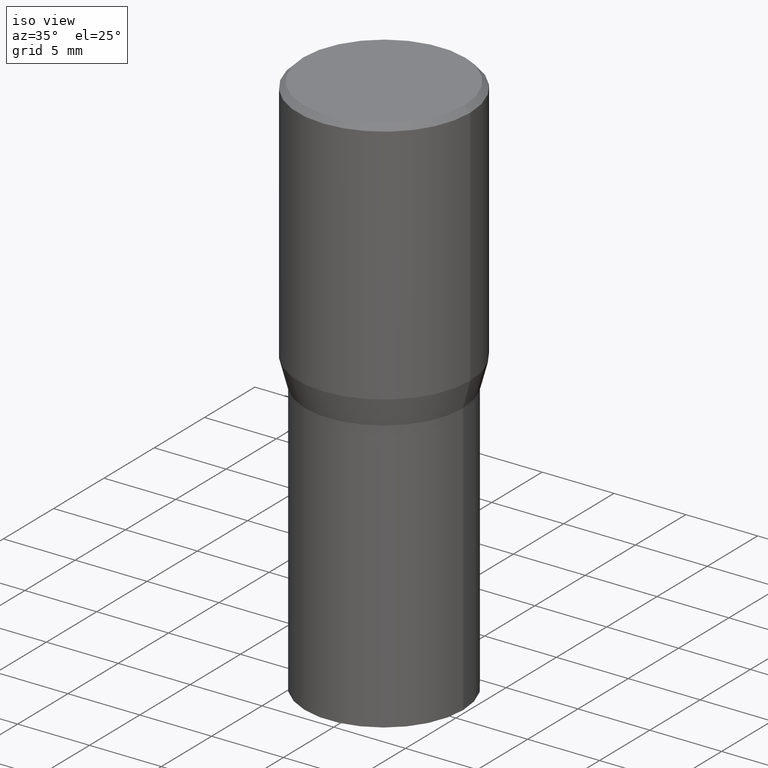
[diagram: clean part render]
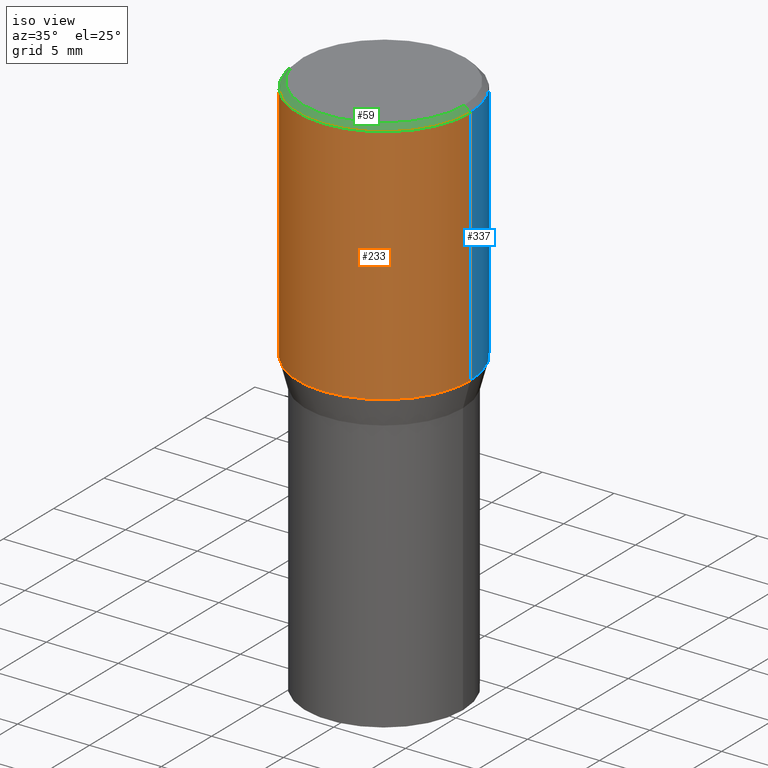
[diagram: same view with three faces highlighted in distinct colors, each labeled with its STEP entity id]
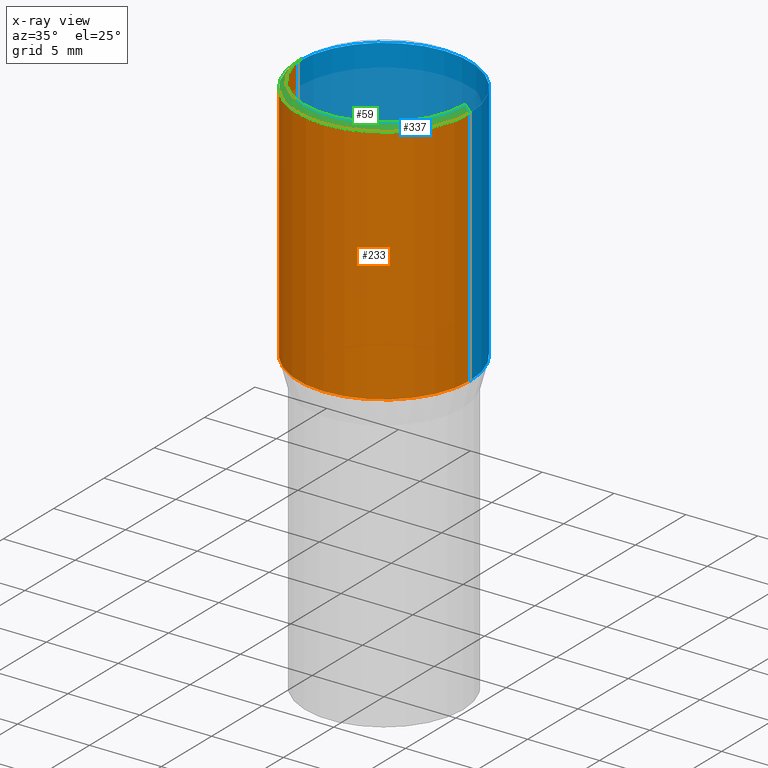
[diagram: x-ray of the same camera — body ghosted, the three highlighted faces saturated]
A machine part, iso view with three faces highlighted in distinct colors.
The next image is the same camera in x-ray (body ghosted, the three faces saturated) — at least one of them is partly hidden behind the body in this view.
Their STEP definitions:

[orange] entity #233 — the highlighted cylindrical surface (partial cylindrical patch) has radius 5.9995 mm, axis along (-0, 0, 1).
#8 = CARTESIAN_POINT ( 'NONE',  ( 0.2361999999999999933, -1.649375784469496131E-15, 1.151752954443000088E-29 ) ) ;
#10 = CARTESIAN_POINT ( 'NONE',  ( -0.2361999999999999933, -6.912449449524502887E-16, -0.6786652016312719748 ) ) ;
#11 = LINE ( 'NONE', #214, #32 ) ;
#25 = CIRCLE ( 'NONE', #200, 0.2361999999999999933 ) ;
#28 = EDGE_CURVE ( 'NONE', #34, #316, #172, .T. ) ;
#29 = LINE ( 'NONE', #8, #453 ) ;
#32 = VECTOR ( 'NONE', #143, 39.37007874015748143 ) ;
#34 = VERTEX_POINT ( 'NONE', #349 ) ;
#35 = CARTESIAN_POINT ( 'NONE',  ( 0.2361999999999999933, -1.701748004552143407E-15, -0.01499999999999999944 ) ) ;
#48 = DIRECTION ( 'NONE',  ( 1.000000000000000000, -6.982962677686266711E-15, 0.000000000000000000 ) ) ;
#67 = EDGE_CURVE ( 'NONE', #180, #34, #11, .T. ) ;
#88 = DIRECTION ( 'NONE',  ( -2.445468806185136597E-29, 3.491481338843145583E-15, 1.000000000000000000 ) ) ;
#123 = EDGE_CURVE ( 'NONE', #180, #309, #25, .T. ) ;
#124 = DIRECTION ( 'NONE',  ( -2.445468806185136597E-29, 3.491481338843145583E-15, 1.000000000000000000 ) ) ;
#133 = AXIS2_PLACEMENT_3D ( 'NONE', #300, #88, #258 ) ;
#143 = DIRECTION ( 'NONE',  ( -2.445468806185136877E-29, 3.491481338843145188E-15, 1.000000000000000000 ) ) ;
#158 = CARTESIAN_POINT ( 'NONE',  ( 1.659654580432621677E-29, -2.369546886817807077E-15, -0.6786652016312719748 ) ) ;
#164 = DIRECTION ( 'NONE',  ( -2.445468806185136597E-29, 3.491481338843145583E-15, 1.000000000000000000 ) ) ;
#172 = CIRCLE ( 'NONE', #242, 0.2361999999999999933 ) ;
#180 = VERTEX_POINT ( 'NONE', #10 ) ;
#181 = DIRECTION ( 'NONE',  ( -2.445468806185136877E-29, 3.491481338843145188E-15, 1.000000000000000000 ) ) ;
#183 = DIRECTION ( 'NONE',  ( 1.000000000000000000, -6.982962677686266711E-15, 0.000000000000000000 ) ) ;
#191 = CARTESIAN_POINT ( 'NONE',  ( 0.2361999999999999933, -4.018922671287303208E-15, -0.6786652016312719748 ) ) ;
#200 = AXIS2_PLACEMENT_3D ( 'NONE', #158, #164, #48 ) ;
#214 = CARTESIAN_POINT ( 'NONE',  ( -0.2361999999999999933, 1.678301941865356591E-15, -1.161852468318208757E-29 ) ) ;
#233 = ADVANCED_FACE ( 'NONE', ( #292 ), #433, .T. ) ;
#242 = AXIS2_PLACEMENT_3D ( 'NONE', #290, #124, #183 ) ;
#258 = DIRECTION ( 'NONE',  ( 1.000000000000000000, -6.982962677686266711E-15, 4.876176775795936353E-29 ) ) ;
#275 = ORIENTED_EDGE ( 'NONE', *, *, #67, .F. ) ;
#288 = ORIENTED_EDGE ( 'NONE', *, *, #28, .F. ) ;
#290 = CARTESIAN_POINT ( 'NONE',  ( 3.668203209277705088E-31, -5.237222008264718399E-17, -0.01499999999999999944 ) ) ;
#292 = FACE_OUTER_BOUND ( 'NONE', #454, .T. ) ;
#300 = CARTESIAN_POINT ( 'NONE',  ( 0.000000000000000000, 0.000000000000000000, 0.000000000000000000 ) ) ;
#309 = VERTEX_POINT ( 'NONE', #191 ) ;
#310 = EDGE_CURVE ( 'NONE', #309, #316, #29, .T. ) ;
#316 = VERTEX_POINT ( 'NONE', #35 ) ;
#325 = ORIENTED_EDGE ( 'NONE', *, *, #310, .T. ) ;
#349 = CARTESIAN_POINT ( 'NONE',  ( -0.2361999999999999933, 4.673423884151294145E-16, -0.01499999999999999944 ) ) ;
#386 = ORIENTED_EDGE ( 'NONE', *, *, #123, .T. ) ;
#433 = CYLINDRICAL_SURFACE ( 'NONE', #133, 0.2361999999999999933 ) ;
#453 = VECTOR ( 'NONE', #181, 39.37007874015748143 ) ;
#454 = EDGE_LOOP ( 'NONE', ( #275, #386, #325, #288 ) ) ;

[blue] entity #337 — the highlighted cylindrical surface (partial cylindrical patch) has radius 5.9995 mm, axis along (-0, 0, 1).
#3 = FACE_OUTER_BOUND ( 'NONE', #418, .T. ) ;
#8 = CARTESIAN_POINT ( 'NONE',  ( 0.2361999999999999933, -1.649375784469496131E-15, 1.151752954443000088E-29 ) ) ;
#10 = CARTESIAN_POINT ( 'NONE',  ( -0.2361999999999999933, -6.912449449524502887E-16, -0.6786652016312719748 ) ) ;
#11 = LINE ( 'NONE', #214, #32 ) ;
#29 = LINE ( 'NONE', #8, #453 ) ;
#32 = VECTOR ( 'NONE', #143, 39.37007874015748143 ) ;
#34 = VERTEX_POINT ( 'NONE', #349 ) ;
#35 = CARTESIAN_POINT ( 'NONE',  ( 0.2361999999999999933, -1.701748004552143407E-15, -0.01499999999999999944 ) ) ;
#67 = EDGE_CURVE ( 'NONE', #180, #34, #11, .T. ) ;
#78 = DIRECTION ( 'NONE',  ( -2.445468806185136597E-29, 3.491481338843145583E-15, 1.000000000000000000 ) ) ;
#82 = CIRCLE ( 'NONE', #322, 0.2361999999999999933 ) ;
#112 = ORIENTED_EDGE ( 'NONE', *, *, #310, .F. ) ;
#143 = DIRECTION ( 'NONE',  ( -2.445468806185136877E-29, 3.491481338843145188E-15, 1.000000000000000000 ) ) ;
#161 = CARTESIAN_POINT ( 'NONE',  ( 3.668203209277705088E-31, -5.237222008264718399E-17, -0.01499999999999999944 ) ) ;
#180 = VERTEX_POINT ( 'NONE', #10 ) ;
#181 = DIRECTION ( 'NONE',  ( -2.445468806185136877E-29, 3.491481338843145188E-15, 1.000000000000000000 ) ) ;
#190 = ORIENTED_EDGE ( 'NONE', *, *, #425, .T. ) ;
#191 = CARTESIAN_POINT ( 'NONE',  ( 0.2361999999999999933, -4.018922671287303208E-15, -0.6786652016312719748 ) ) ;
#196 = DIRECTION ( 'NONE',  ( 1.000000000000000000, -6.982962677686266711E-15, 0.000000000000000000 ) ) ;
#214 = CARTESIAN_POINT ( 'NONE',  ( -0.2361999999999999933, 1.678301941865356591E-15, -1.161852468318208757E-29 ) ) ;
#222 = DIRECTION ( 'NONE',  ( -2.445468806185136597E-29, 3.491481338843145583E-15, 1.000000000000000000 ) ) ;
#235 = AXIS2_PLACEMENT_3D ( 'NONE', #465, #222, #360 ) ;
#251 = EDGE_CURVE ( 'NONE', #316, #34, #344, .T. ) ;
#269 = CARTESIAN_POINT ( 'NONE',  ( 1.659654580432621677E-29, -2.369546886817807077E-15, -0.6786652016312719748 ) ) ;
#309 = VERTEX_POINT ( 'NONE', #191 ) ;
#310 = EDGE_CURVE ( 'NONE', #309, #316, #29, .T. ) ;
#313 = AXIS2_PLACEMENT_3D ( 'NONE', #161, #399, #196 ) ;
#316 = VERTEX_POINT ( 'NONE', #35 ) ;
#322 = AXIS2_PLACEMENT_3D ( 'NONE', #269, #78, #460 ) ;
#337 = ADVANCED_FACE ( 'NONE', ( #3 ), #354, .T. ) ;
#344 = CIRCLE ( 'NONE', #313, 0.2361999999999999933 ) ;
#349 = CARTESIAN_POINT ( 'NONE',  ( -0.2361999999999999933, 4.673423884151294145E-16, -0.01499999999999999944 ) ) ;
#354 = CYLINDRICAL_SURFACE ( 'NONE', #235, 0.2361999999999999933 ) ;
#360 = DIRECTION ( 'NONE',  ( 1.000000000000000000, -6.982962677686266711E-15, 4.876176775795936353E-29 ) ) ;
#393 = ORIENTED_EDGE ( 'NONE', *, *, #251, .F. ) ;
#399 = DIRECTION ( 'NONE',  ( -2.445468806185136597E-29, 3.491481338843145583E-15, 1.000000000000000000 ) ) ;
#418 = EDGE_LOOP ( 'NONE', ( #190, #455, #393, #112 ) ) ;
#425 = EDGE_CURVE ( 'NONE', #309, #180, #82, .T. ) ;
#453 = VECTOR ( 'NONE', #181, 39.37007874015748143 ) ;
#455 = ORIENTED_EDGE ( 'NONE', *, *, #67, .T. ) ;
#460 = DIRECTION ( 'NONE',  ( 1.000000000000000000, -6.982962677686266711E-15, 0.000000000000000000 ) ) ;
#465 = CARTESIAN_POINT ( 'NONE',  ( 0.000000000000000000, 0.000000000000000000, 0.000000000000000000 ) ) ;

[green] entity #59 — the highlighted conical surface has half-angle 45 deg.
#5 = CARTESIAN_POINT ( 'NONE',  ( -1.149724336312568549E-45, 1.641501643732376111E-31, 4.701447564592355584E-17 ) ) ;
#13 = DIRECTION ( 'NONE',  ( 1.000000000000000000, -6.982962677686267499E-15, 4.877828720335458505E-29 ) ) ;
#18 = DIRECTION ( 'NONE',  ( -0.7071067811865459074, 2.468850131082239706E-15, -0.7071067811865492381 ) ) ;
#28 = EDGE_CURVE ( 'NONE', #34, #316, #172, .T. ) ;
#30 = EDGE_CURVE ( 'NONE', #252, #316, #72, .T. ) ;
#34 = VERTEX_POINT ( 'NONE', #349 ) ;
#35 = CARTESIAN_POINT ( 'NONE',  ( 0.2361999999999999933, -1.701748004552143407E-15, -0.01499999999999999944 ) ) ;
#41 = VECTOR ( 'NONE', #462, 39.37007874015748143 ) ;
#42 = AXIS2_PLACEMENT_3D ( 'NONE', #77, #65, #153 ) ;
#59 = ADVANCED_FACE ( 'NONE', ( #359 ), #236, .T. ) ;
#65 = DIRECTION ( 'NONE',  ( 2.445468806185136597E-29, -3.491481338843145583E-15, -1.000000000000000000 ) ) ;
#72 = LINE ( 'NONE', #323, #41 ) ;
#76 = ORIENTED_EDGE ( 'NONE', *, *, #370, .F. ) ;
#77 = CARTESIAN_POINT ( 'NONE',  ( 3.668203209277705088E-31, -5.237222008264718399E-17, -0.01499999999999999944 ) ) ;
#89 = CARTESIAN_POINT ( 'NONE',  ( -0.2361999999999999933, 1.597003564386848854E-15, -0.01499999999999999944 ) ) ;
#124 = DIRECTION ( 'NONE',  ( -2.445468806185136597E-29, 3.491481338843145583E-15, 1.000000000000000000 ) ) ;
#130 = VERTEX_POINT ( 'NONE', #436 ) ;
#153 = DIRECTION ( 'NONE',  ( -1.000000000000000000, 6.982962677686266711E-15, 0.000000000000000000 ) ) ;
#154 = DIRECTION ( 'NONE',  ( -2.445468806185136597E-29, 3.491481338843145583E-15, 1.000000000000000000 ) ) ;
#172 = CIRCLE ( 'NONE', #242, 0.2361999999999999933 ) ;
#183 = DIRECTION ( 'NONE',  ( 1.000000000000000000, -6.982962677686266711E-15, 0.000000000000000000 ) ) ;
#206 = LINE ( 'NONE', #89, #444 ) ;
#236 = CONICAL_SURFACE ( 'NONE', #42, 0.2361999999999999933, 0.7853981633974459475 ) ;
#242 = AXIS2_PLACEMENT_3D ( 'NONE', #290, #124, #183 ) ;
#252 = VERTEX_POINT ( 'NONE', #394 ) ;
#257 = ORIENTED_EDGE ( 'NONE', *, *, #28, .T. ) ;
#259 = AXIS2_PLACEMENT_3D ( 'NONE', #5, #154, #13 ) ;
#290 = CARTESIAN_POINT ( 'NONE',  ( 3.668203209277705088E-31, -5.237222008264718399E-17, -0.01499999999999999944 ) ) ;
#307 = CIRCLE ( 'NONE', #259, 0.2212000000000000077 ) ;
#316 = VERTEX_POINT ( 'NONE', #35 ) ;
#323 = CARTESIAN_POINT ( 'NONE',  ( 0.2361999999999999933, -1.672821847156282947E-15, -0.01499999999999999944 ) ) ;
#349 = CARTESIAN_POINT ( 'NONE',  ( -0.2361999999999999933, 4.673423884151294145E-16, -0.01499999999999999944 ) ) ;
#359 = FACE_OUTER_BOUND ( 'NONE', #463, .T. ) ;
#370 = EDGE_CURVE ( 'NONE', #130, #252, #307, .T. ) ;
#390 = ORIENTED_EDGE ( 'NONE', *, *, #409, .T. ) ;
#394 = CARTESIAN_POINT ( 'NONE',  ( 0.2212000000000000077, -1.595182002131672613E-15, 4.701447564593453210E-17 ) ) ;
#409 = EDGE_CURVE ( 'NONE', #130, #34, #206, .T. ) ;
#428 = ORIENTED_EDGE ( 'NONE', *, *, #30, .F. ) ;
#436 = CARTESIAN_POINT ( 'NONE',  ( -0.2212000000000000077, 1.570817454345525709E-15, 4.701447564591265970E-17 ) ) ;
#444 = VECTOR ( 'NONE', #18, 39.37007874015748143 ) ;
#462 = DIRECTION ( 'NONE',  ( 0.7071067811865459074, -7.319954787623251312E-15, -0.7071067811865492381 ) ) ;
#463 = EDGE_LOOP ( 'NONE', ( #428, #76, #390, #257 ) ) ;